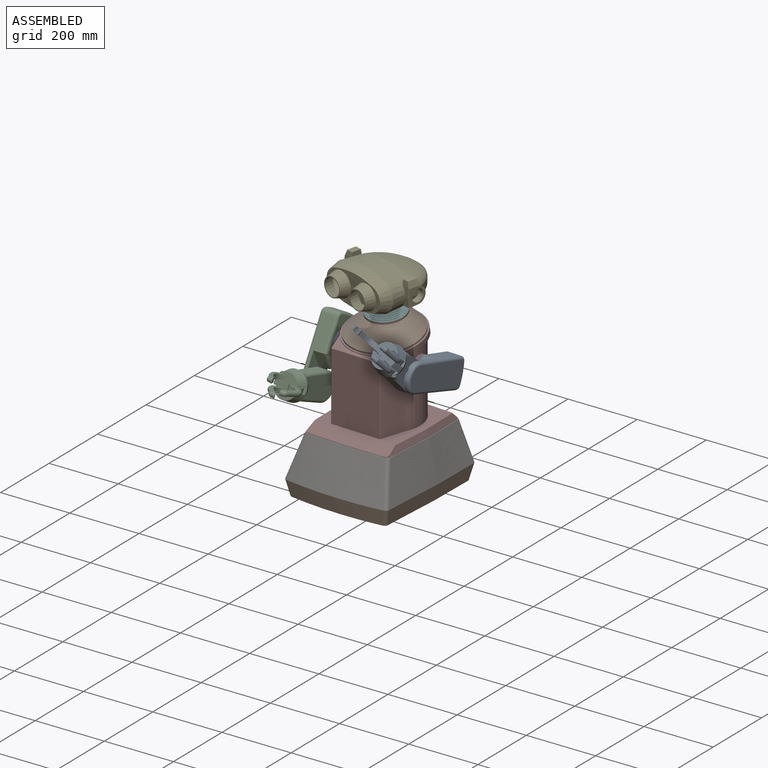
[diagram: assembled view]
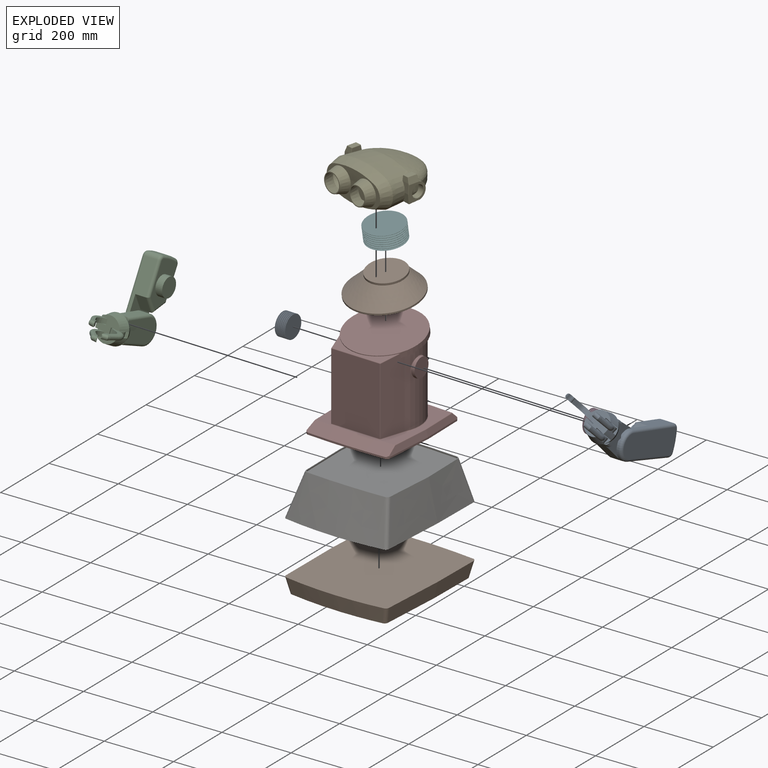
[diagram: exploded view]
GUIDED TOUR — MATED ASSEMBLY WITH SUBASSEMBLIES (Onshape document 58bd80dde055810fc68431c1, AutoMate assembly 58bd80dde055810fc68431c1_ead28b3b13cd48ad4f9b0c1c_d1398a42e05516c8f124f578_default)

This assembly has 21 component occurrences arranged in 10 top-level units: 7 individual components plus 3 subassemblies (S0, S1, S2). The tour has two levels: first the top level, where each subassembly is treated as one rigid unit; then each subassembly is toured internally in its own section (nesting deeper than one subassembly level is flattened into its subassembly's section).

Components are labeled P0..P20 across the whole record; subassembly units are labeled S0..S2. A mate is a constraint between two units; its type names the relative motion it leaves free:
  FASTENED — locks the two components together rigidly (no relative motion),
  REVOLUTE — leaves rotation about the listed axis free (a hinge).
Axis/direction vectors are unit vectors and 'through' points are millimeter coordinates, both in the assembly's world frame.

TOP-LEVEL MATES (between units; each subassembly's internal mates are listed in its own section)
  1. REVOLUTE "Revolute 1": S0 <-> P13, axis (-0.999, 0.032, 0.000) through (158.72, -116.70, 211.18) mm
  2. FASTENED "Fastened 4": P2 <-> P8, direction (-0.006, -0.174, 0.985) through (48.92, -105.88, 328.69) mm
  3. FASTENED "Fastened 5": P14 <-> S1, direction (-0.999, 0.032, 0.000) through (-81.15, -108.91, 211.18) mm
  4. FASTENED "Fastened 6": P4 <-> S0, direction (0.999, -0.032, 0.000) through (178.71, -117.35, 211.18) mm
  5. FASTENED "Fastened 2": P10 <-> P13, direction (0.000, 0.000, 1.000) through (48.46, -123.05, 29.18) mm
  6. FASTENED "Fastened 3": P13 <-> P2, direction (-0.006, -0.174, 0.985) through (48.73, -111.80, 275.86) mm
  7. REVOLUTE "Revolute 2": P13 <-> S1, axis (-0.999, 0.032, 0.000) through (-61.16, -109.56, 211.18) mm
  8. REVOLUTE "Revolute 3": P8 <-> S2, axis (-0.006, -0.174, 0.985) through (48.68, -113.17, 370.05) mm
  9. FASTENED "Fastened 1": P18 <-> P10, direction (0.000, 0.000, 1.000) through (48.12, -133.45, -80.82) mm

TOP-LEVEL ASSEMBLY ORDER
  1. P13 — the base component [order heuristic]
  2. S1 — core [order heuristic]
  3. S0 — core [order heuristic]
  4. P4 — core [order heuristic]
  5. P14 — core [order heuristic]
  6. P2 [order verified]
  7. P8 [order verified]
  8. S2 [order verified]
  9. P10 [order verified]
  10. P18 [order verified]
Order-tag legend:
  [order verified] — this step's position reverses a verified removal order: the component was checked to insert without passing through the ones already placed.
  [order heuristic] — the first 5 components form the assembly's core: parts whose collision-free extraction could not be verified, listed in mate-graph order.

Of the 21 component occurrences, 8 carry the full construction recipe — the FeatureScript program that regenerates the part's solid from scratch; the rest are supplied as boundary geometry only. Each toured unit is shown spotlighted twice — assembled, then exploded with a leader line back to its socket (green = recipe-attached component, orange = geometry-only, blue = subassembly unit; the rest desaturated gray).
NOTE — this tour is split across 3 documents so each fits a 32k-token context. This is document 1: the component sections continue in the remaining 2 documents, each repeating the header above.
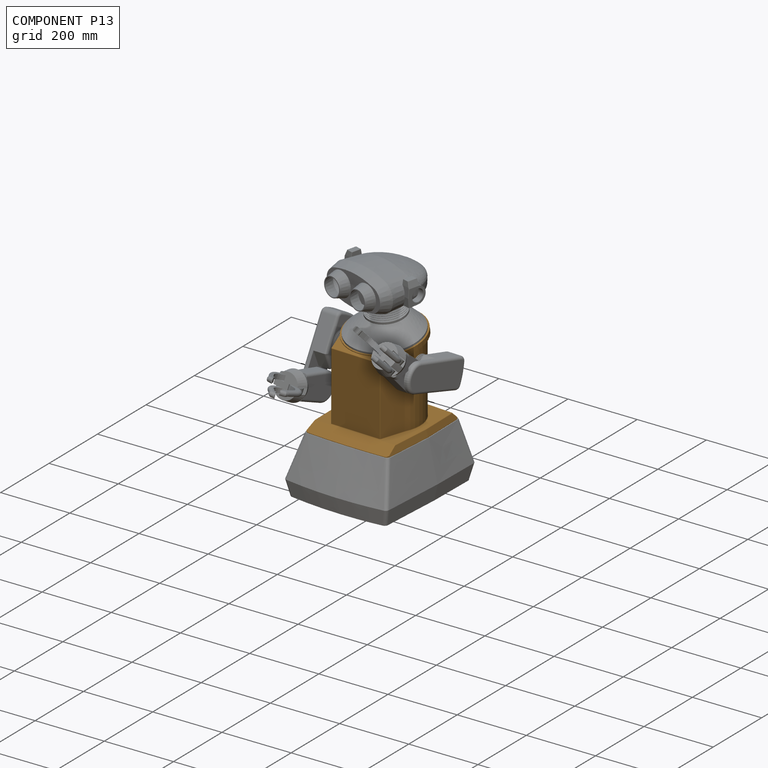
[diagram: component P13 — assembled]
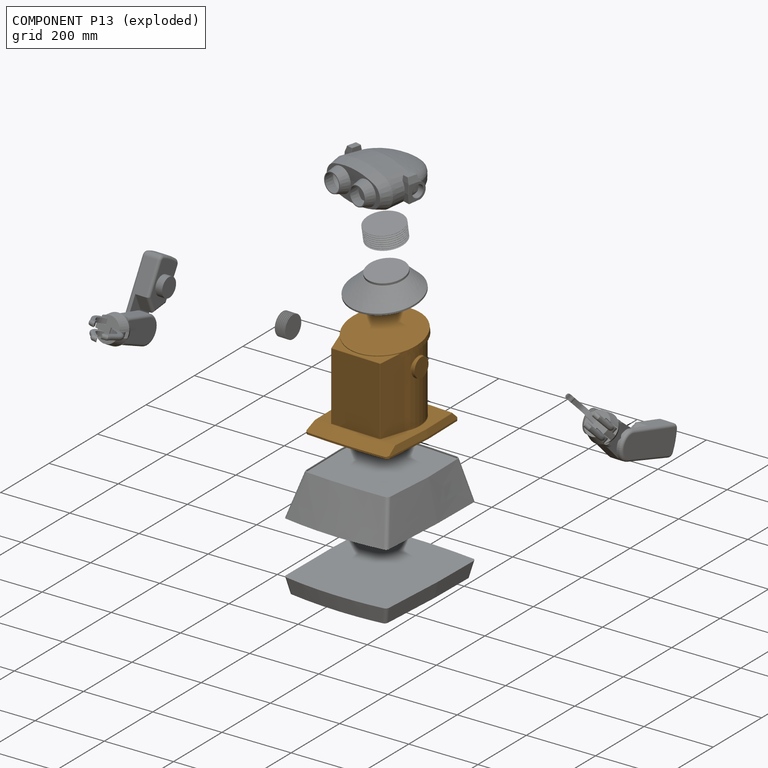
[diagram: component P13 — exploded]
COMPONENT P13 — geometry summary (no construction recipe available for this part):
  bounding box: 566.9 x 390.5 x 302.2 mm
  B-rep topology: 2 solids, 70 faces, 323 edges
  volume: 9771634 mm^3 (15% of its bounding box)
Held by: REVOLUTE mate "Revolute 1" to P0; FASTENED mate "Fastened 2" to P10; FASTENED mate "Fastened 3" to P2; REVOLUTE mate "Revolute 2" to P3.
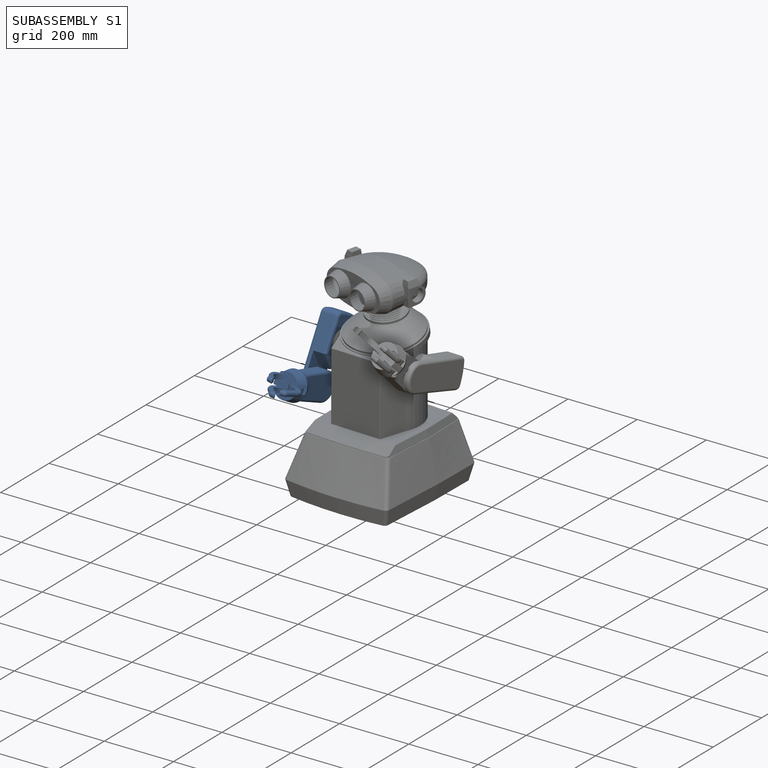
[diagram: subassembly S1 — assembled]
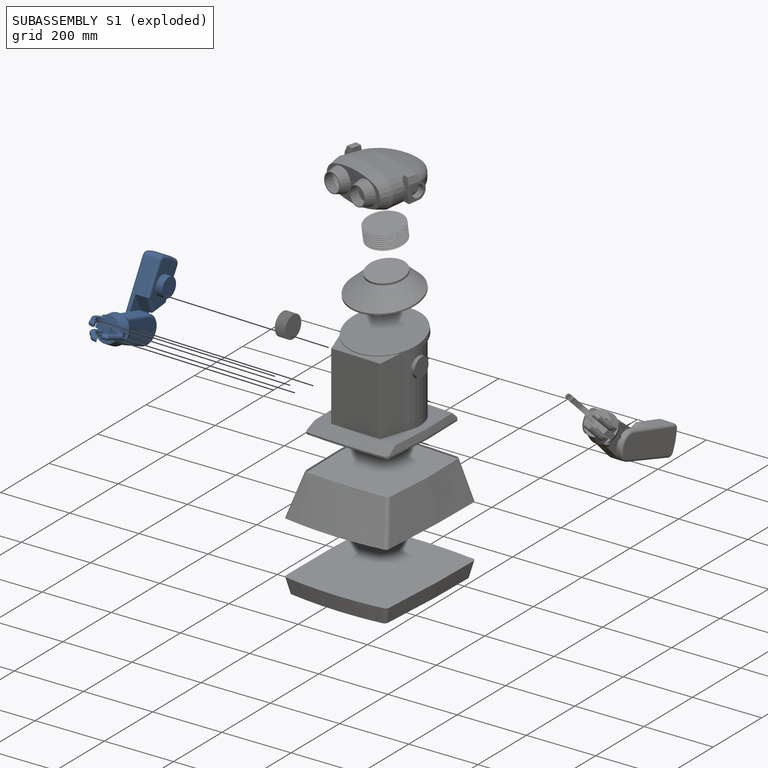
[diagram: subassembly S1 — exploded]
SUBASSEMBLY S1 — 6 components (P3, P5, P16, P17, P19, P20), of which 2 recipe-attached; toured below.
Held by: FASTENED mate "Fastened 5" to P14; REVOLUTE mate "Revolute 2" to P13.
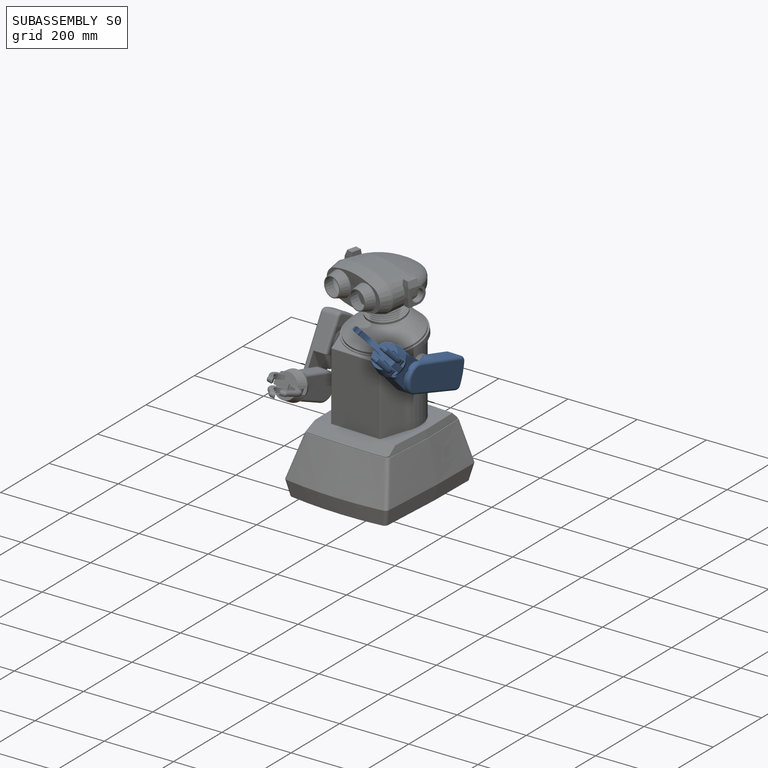
[diagram: subassembly S0 — assembled]
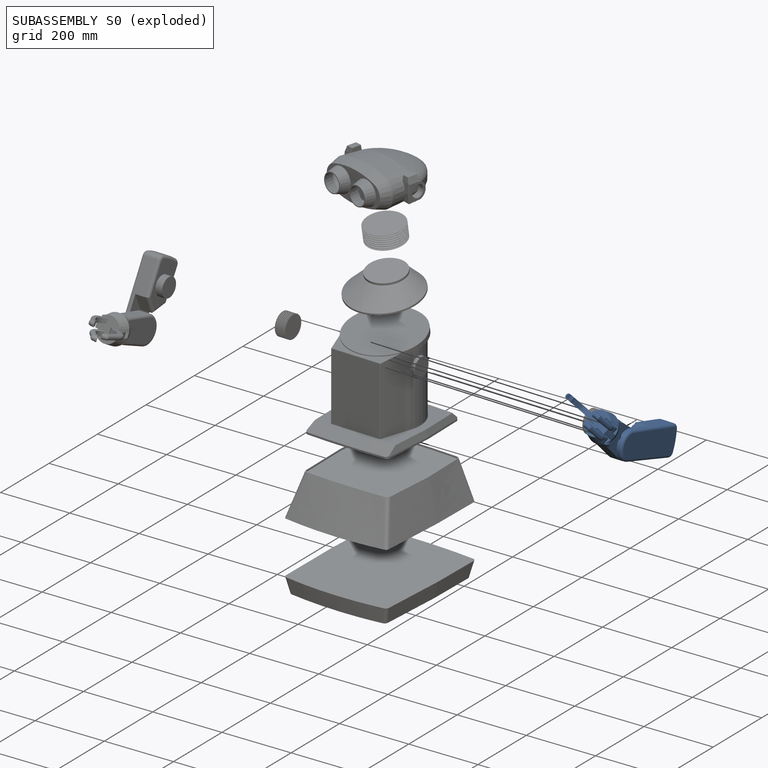
[diagram: subassembly S0 — exploded]
SUBASSEMBLY S0 — 6 components (P0, P1, P6, P9, P11, P12), of which 2 recipe-attached; toured below.
Held by: REVOLUTE mate "Revolute 1" to P13; FASTENED mate "Fastened 6" to P4.
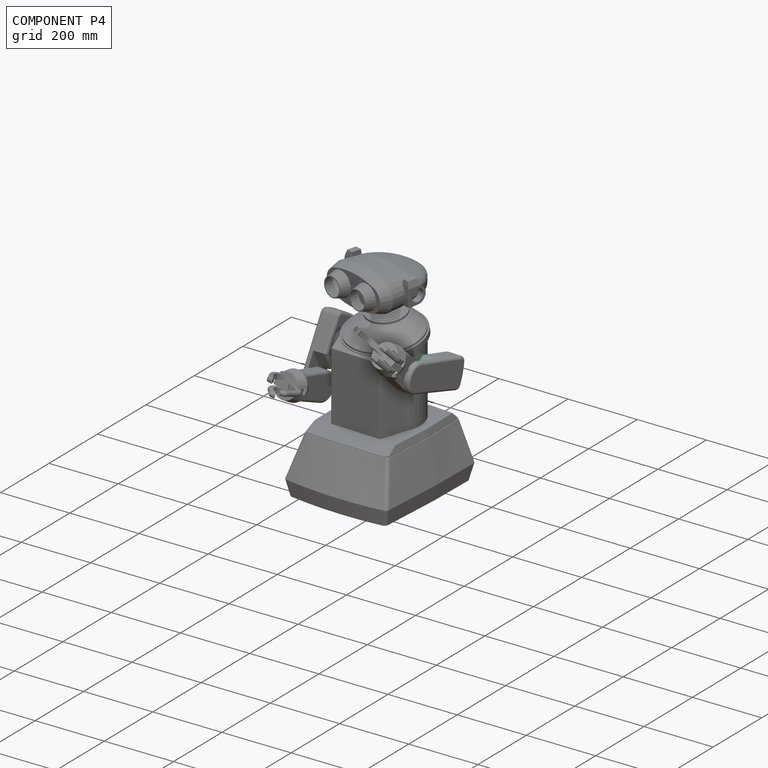
[diagram: component P4 — assembled]
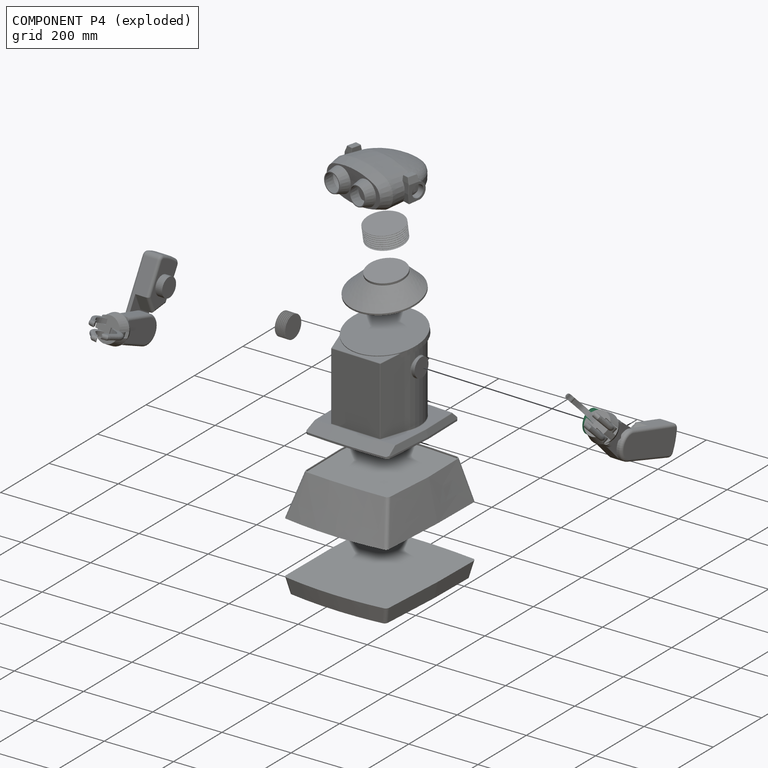
[diagram: component P4 — exploded]
COMPONENT P4 — recipe-attached (CADFS 00590277, mesh-verified: the recipe's output STEP matches this component's geometry to below the mesh-comparison resolution (tessellation chordal tolerance ~0.145 mm)).
Held by: FASTENED mate "Fastened 6" to P0.
Construction recipe (FeatureScript — the CAD program that rebuilds this solid; sketch coordinates are in the units given by the * unit suffixes, e.g. mm):

FeatureScript 1511;
import(path : "onshape/std/geometry.fs", version : "1511.0");
import(path : "onshape/std/common.fs", version : "1511.0");
const mm = millimeter;
const VERTEX = EntityType.VERTEX;
const EDGE = EntityType.EDGE;
const FACE = EntityType.FACE;
const BODY = EntityType.BODY;
function v(x, y){return vector(x, y);}
function OD(order){return orderDisambiguation(order);}
function OSD(set){return originalSetDisambiguation(set);}
function TD(topology){return topologyDisambiguation(topology);}
function TDD(query){return trueDependencyDisambiguation(query);}
function sQuery(a, b, c) {return sketchEntityQuery(a, b, c);}

annotation { "Feature Type Name" : "Feature", "Feature Type Description" : "" }
export const myFeature = defineFeature(function(context is Context, id is Id, definition is map)
    precondition{}
    {
        {
            var Q0;
            Q0=qCreatedBy(makeId("Front.planeOp"),FACE);
            var sketch = newSketch(context, id + "F0", { "sketchPlane" : qUnion([Q0])});
            skLineSegment(sketch, "E0", {"start": v(-32.5, 0) * mm, "end": v(-27.5, 1.5) * mm});
            skLineSegment(sketch, "E1", {"start": v(-27.5, 1.5) * mm, "end": v(-27.5, 2.5) * mm});
            skLineSegment(sketch, "E2", {"start": v(-27.5, 2.5) * mm, "end": v(-32.5, 4) * mm});
            skLineSegment(sketch, "E3", {"start": v(-32.5, 4) * mm, "end": v(-32.5, 5) * mm});
            skLineSegment(sketch, "E4", {"start": v(-32.5, 0) * mm, "end": v(0, 0) * mm});
            skLineSegment(sketch, "E5", {"start": v(0, 0) * mm, "end": v(0, 30) * mm});
            skLineSegment(sketch, "E6", {"start": v(-32.5, 4) * mm, "end": v(-32.5, 0) * mm, "construction": true});
            skPoint(sketch, "E7", {"position": v(-32.5, 2) * mm});
            skPoint(sketch, "E8", {"position": v(-27.5, 2) * mm});
            skLineSegment(sketch, "E9.0.1.0", {"start": v(-32.5, 9) * mm, "end": v(-32.5, 5) * mm, "construction": true});
            skLineSegment(sketch, "E9.0.1.1", {"start": v(-27.5, 7.5) * mm, "end": v(-32.5, 9) * mm});
            skLineSegment(sketch, "E9.0.1.2", {"start": v(-32.5, 5) * mm, "end": v(-27.5, 6.5) * mm});
            skPoint(sketch, "E9.0.1.3", {"position": v(-27.5, 7) * mm});
            skPoint(sketch, "E9.0.1.4", {"position": v(-32.5, 7) * mm});
            skLineSegment(sketch, "E9.0.1.5", {"start": v(-32.5, 9) * mm, "end": v(-32.5, 10) * mm});
            skLineSegment(sketch, "E9.0.1.6", {"start": v(-27.5, 6.5) * mm, "end": v(-27.5, 7.5) * mm});
            skLineSegment(sketch, "E9.0.2.0", {"start": v(-32.5, 14) * mm, "end": v(-32.5, 10) * mm, "construction": true});
            skLineSegment(sketch, "E9.0.2.1", {"start": v(-27.5, 12.5) * mm, "end": v(-32.5, 14) * mm});
            skLineSegment(sketch, "E9.0.2.2", {"start": v(-32.5, 10) * mm, "end": v(-27.5, 11.5) * mm});
            skPoint(sketch, "E9.0.2.3", {"position": v(-27.5, 12) * mm});
            skPoint(sketch, "E9.0.2.4", {"position": v(-32.5, 12) * mm});
            skLineSegment(sketch, "E9.0.2.5", {"start": v(-32.5, 14) * mm, "end": v(-32.5, 15) * mm});
            skLineSegment(sketch, "E9.0.2.6", {"start": v(-27.5, 11.5) * mm, "end": v(-27.5, 12.5) * mm});
            skLineSegment(sketch, "E9.0.3.0", {"start": v(-32.5, 19) * mm, "end": v(-32.5, 15) * mm, "construction": true});
            skLineSegment(sketch, "E9.0.3.1", {"start": v(-27.5, 17.5) * mm, "end": v(-32.5, 19) * mm});
            skLineSegment(sketch, "E9.0.3.2", {"start": v(-32.5, 15) * mm, "end": v(-27.5, 16.5) * mm});
            skPoint(sketch, "E9.0.3.3", {"position": v(-27.5, 17) * mm});
            skPoint(sketch, "E9.0.3.4", {"position": v(-32.5, 17) * mm});
            skLineSegment(sketch, "E9.0.3.5", {"start": v(-32.5, 19) * mm, "end": v(-32.5, 20) * mm});
            skLineSegment(sketch, "E9.0.3.6", {"start": v(-27.5, 16.5) * mm, "end": v(-27.5, 17.5) * mm});
            skLineSegment(sketch, "E9.0.4.0", {"start": v(-32.5, 24) * mm, "end": v(-32.5, 20) * mm, "construction": true});
            skLineSegment(sketch, "E9.0.4.1", {"start": v(-27.5, 22.5) * mm, "end": v(-32.5, 24) * mm});
            skLineSegment(sketch, "E9.0.4.2", {"start": v(-32.5, 20) * mm, "end": v(-27.5, 21.5) * mm});
            skPoint(sketch, "E9.0.4.3", {"position": v(-27.5, 22) * mm});
            skPoint(sketch, "E9.0.4.4", {"position": v(-32.5, 22) * mm});
            skLineSegment(sketch, "E9.0.4.5", {"start": v(-32.5, 24) * mm, "end": v(-32.5, 25) * mm});
            skLineSegment(sketch, "E9.0.4.6", {"start": v(-27.5, 21.5) * mm, "end": v(-27.5, 22.5) * mm});
            skLineSegment(sketch, "E9.0.5.0", {"start": v(-32.5, 29) * mm, "end": v(-32.5, 25) * mm, "construction": true});
            skLineSegment(sketch, "E9.0.5.1", {"start": v(-27.5, 27.5) * mm, "end": v(-32.5, 29) * mm});
            skLineSegment(sketch, "E9.0.5.2", {"start": v(-32.5, 25) * mm, "end": v(-27.5, 26.5) * mm});
            skPoint(sketch, "E9.0.5.3", {"position": v(-27.5, 27) * mm});
            skPoint(sketch, "E9.0.5.4", {"position": v(-32.5, 27) * mm});
            skLineSegment(sketch, "E9.0.5.5", {"start": v(-32.5, 29) * mm, "end": v(-32.5, 30) * mm});
            skLineSegment(sketch, "E9.0.5.6", {"start": v(-27.5, 26.5) * mm, "end": v(-27.5, 27.5) * mm});
            skLineSegment(sketch, "E9.direction1", {"start": v(-37, 0) * mm, "end": v(-32.5, 0) * mm, "construction": true});
            skLineSegment(sketch, "E9.direction2", {"start": v(-32.5, 0) * mm, "end": v(-32.5, 5) * mm, "construction": true});
            skLineSegment(sketch, "E10", {"start": v(-32.5, 30) * mm, "end": v(0, 30) * mm});
            skSolve(sketch);
        }
        {
            var Q0;
            Q0=makeQuery(id+"F0.imprint","IMPRINT",FACE,{"disambiguationData":[TD([[makeQuery(id+"F0.imprint","IMPRINT",EDGE,{"derivedFrom":sQuery(id+"F0.wireOp",EDGE,"E0")}),-1.0]])]});
            var Q1;
            Q1=sQuery(id+"F0.wireOp",EDGE,"E5");
            revolve(context, id + "F1", {"entities" : qUnion([Q0]), "axis" : qUnion([Q1]), "revolveType" : RevolveType.FULL});
        }
        {
            var Q0;
            Q0=makeQuery(id+"F1.opRevolve","SWEPT_EDGE",EDGE,{"disambiguationData":[OSD([sQuery(id+"F0.wireOp",EDGE,"E9.0.5.5"),sQuery(id+"F0.wireOp",EDGE,"E10")])]});
            var Q1;
            Q1=makeQuery(id+"F1.opRevolve","SWEPT_EDGE",EDGE,{"disambiguationData":[OSD([sQuery(id+"F0.wireOp",EDGE,"E9.0.5.1"),sQuery(id+"F0.wireOp",EDGE,"E9.0.5.5")])]});
            var Q2;
            Q2=makeQuery(id+"F1.opRevolve","SWEPT_EDGE",EDGE,{"disambiguationData":[OSD([sQuery(id+"F0.wireOp",EDGE,"E9.0.5.1"),sQuery(id+"F0.wireOp",EDGE,"E9.0.5.6")])]});
            var Q3;
            Q3=makeQuery(id+"F1.opRevolve","SWEPT_EDGE",EDGE,{"disambiguationData":[OSD([sQuery(id+"F0.wireOp",EDGE,"E9.0.5.2"),sQuery(id+"F0.wireOp",EDGE,"E9.0.5.6")])]});
            var Q4;
            Q4=makeQuery(id+"F1.opRevolve","SWEPT_EDGE",EDGE,{"disambiguationData":[OSD([sQuery(id+"F0.wireOp",EDGE,"E9.0.4.5"),sQuery(id+"F0.wireOp",EDGE,"E9.0.5.2")])]});
            var Q5;
            Q5=makeQuery(id+"F1.opRevolve","SWEPT_EDGE",EDGE,{"disambiguationData":[OSD([sQuery(id+"F0.wireOp",EDGE,"E9.0.4.1"),sQuery(id+"F0.wireOp",EDGE,"E9.0.4.5")])]});
            var Q6;
            Q6=makeQuery(id+"F1.opRevolve","SWEPT_EDGE",EDGE,{"disambiguationData":[OSD([sQuery(id+"F0.wireOp",EDGE,"E9.0.4.1"),sQuery(id+"F0.wireOp",EDGE,"E9.0.4.6")])]});
            var Q7;
            Q7=makeQuery(id+"F1.opRevolve","SWEPT_EDGE",EDGE,{"disambiguationData":[OSD([sQuery(id+"F0.wireOp",EDGE,"E9.0.4.2"),sQuery(id+"F0.wireOp",EDGE,"E9.0.4.6")])]});
            var Q8;
            Q8=makeQuery(id+"F1.opRevolve","SWEPT_EDGE",EDGE,{"disambiguationData":[OSD([sQuery(id+"F0.wireOp",EDGE,"E9.0.3.5"),sQuery(id+"F0.wireOp",EDGE,"E9.0.4.2")])]});
            var Q9;
            Q9=makeQuery(id+"F1.opRevolve","SWEPT_EDGE",EDGE,{"disambiguationData":[OSD([sQuery(id+"F0.wireOp",EDGE,"E9.0.3.1"),sQuery(id+"F0.wireOp",EDGE,"E9.0.3.5")])]});
            var Q10;
            Q10=makeQuery(id+"F1.opRevolve","SWEPT_EDGE",EDGE,{"disambiguationData":[OSD([sQuery(id+"F0.wireOp",EDGE,"E9.0.3.1"),sQuery(id+"F0.wireOp",EDGE,"E9.0.3.6")])]});
            var Q11;
            Q11=makeQuery(id+"F1.opRevolve","SWEPT_EDGE",EDGE,{"disambiguationData":[OSD([sQuery(id+"F0.wireOp",EDGE,"E9.0.3.2"),sQuery(id+"F0.wireOp",EDGE,"E9.0.3.6")])]});
            var Q12;
            Q12=makeQuery(id+"F1.opRevolve","SWEPT_EDGE",EDGE,{"disambiguationData":[OSD([sQuery(id+"F0.wireOp",EDGE,"E9.0.2.5"),sQuery(id+"F0.wireOp",EDGE,"E9.0.3.2")])]});
            var Q13;
            Q13=makeQuery(id+"F1.opRevolve","SWEPT_EDGE",EDGE,{"disambiguationData":[OSD([sQuery(id+"F0.wireOp",EDGE,"E9.0.2.1"),sQuery(id+"F0.wireOp",EDGE,"E9.0.2.5")])]});
            var Q14;
            Q14=makeQuery(id+"F1.opRevolve","SWEPT_FACE",FACE,{"disambiguationData":[OSD([sQuery(id+"F0.wireOp",EDGE,"E9.0.2.1")])]});
            var Q15;
            Q15=makeQuery(id+"F1.opRevolve","SWEPT_EDGE",EDGE,{"disambiguationData":[OSD([sQuery(id+"F0.wireOp",EDGE,"E9.0.2.1"),sQuery(id+"F0.wireOp",EDGE,"E9.0.2.6")])]});
            var Q16;
            Q16=makeQuery(id+"F1.opRevolve","SWEPT_EDGE",EDGE,{"disambiguationData":[OSD([sQuery(id+"F0.wireOp",EDGE,"E9.0.2.2"),sQuery(id+"F0.wireOp",EDGE,"E9.0.2.6")])]});
            var Q17;
            Q17=makeQuery(id+"F1.opRevolve","SWEPT_FACE",FACE,{"disambiguationData":[OSD([sQuery(id+"F0.wireOp",EDGE,"E9.0.2.2")])]});
            var Q18;
            Q18=makeQuery(id+"F1.opRevolve","SWEPT_EDGE",EDGE,{"disambiguationData":[OSD([sQuery(id+"F0.wireOp",EDGE,"E9.0.1.1"),sQuery(id+"F0.wireOp",EDGE,"E9.0.1.5")])]});
            var Q19;
            Q19=makeQuery(id+"F1.opRevolve","SWEPT_EDGE",EDGE,{"disambiguationData":[OSD([sQuery(id+"F0.wireOp",EDGE,"E9.0.1.5"),sQuery(id+"F0.wireOp",EDGE,"E9.0.2.2")])]});
            var Q20;
            Q20=makeQuery(id+"F1.opRevolve","SWEPT_EDGE",EDGE,{"disambiguationData":[OSD([sQuery(id+"F0.wireOp",EDGE,"E9.0.1.1"),sQuery(id+"F0.wireOp",EDGE,"E9.0.1.6")])]});
            var Q21;
            Q21=makeQuery(id+"F1.opRevolve","SWEPT_EDGE",EDGE,{"disambiguationData":[OSD([sQuery(id+"F0.wireOp",EDGE,"E9.0.1.2"),sQuery(id+"F0.wireOp",EDGE,"E9.0.1.6")])]});
            var Q22;
            Q22=makeQuery(id+"F1.opRevolve","SWEPT_EDGE",EDGE,{"disambiguationData":[OSD([sQuery(id+"F0.wireOp",EDGE,"E3"),sQuery(id+"F0.wireOp",EDGE,"E9.0.1.2")])]});
            var Q23;
            Q23=makeQuery(id+"F1.opRevolve","SWEPT_EDGE",EDGE,{"disambiguationData":[OSD([sQuery(id+"F0.wireOp",EDGE,"E2"),sQuery(id+"F0.wireOp",EDGE,"E3")])]});
            var Q24;
            Q24=makeQuery(id+"F1.opRevolve","SWEPT_EDGE",EDGE,{"disambiguationData":[OSD([sQuery(id+"F0.wireOp",EDGE,"E1"),sQuery(id+"F0.wireOp",EDGE,"E2")])]});
            var Q25;
            Q25=makeQuery(id+"F1.opRevolve","SWEPT_EDGE",EDGE,{"disambiguationData":[OSD([sQuery(id+"F0.wireOp",EDGE,"E0"),sQuery(id+"F0.wireOp",EDGE,"E1")])]});
            fillet(context, id + "F2", {"entities" : qUnion([Q0, Q1, Q2, Q3, Q4, Q5, Q6, Q7, Q8, Q9, Q10, Q11, Q12, Q13, Q14, Q15, Q16, Q17, Q18, Q19, Q20, Q21, Q22, Q23, Q24, Q25]), "radius" : 0.55 * mm, "tangentPropagation" : true, "allowEdgeOverflow" : false});
        }
    });
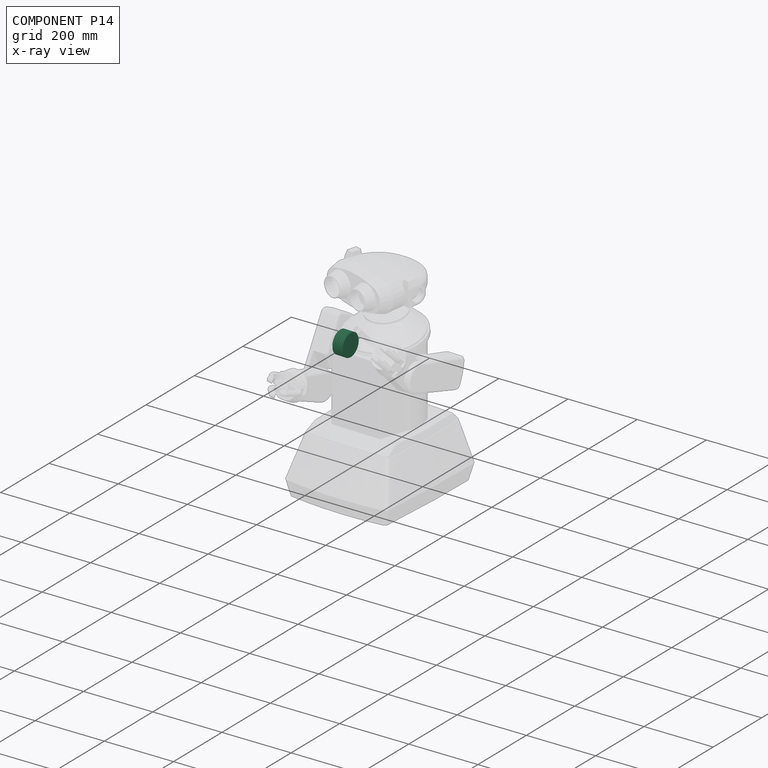
[diagram: component P14 — x-ray view]
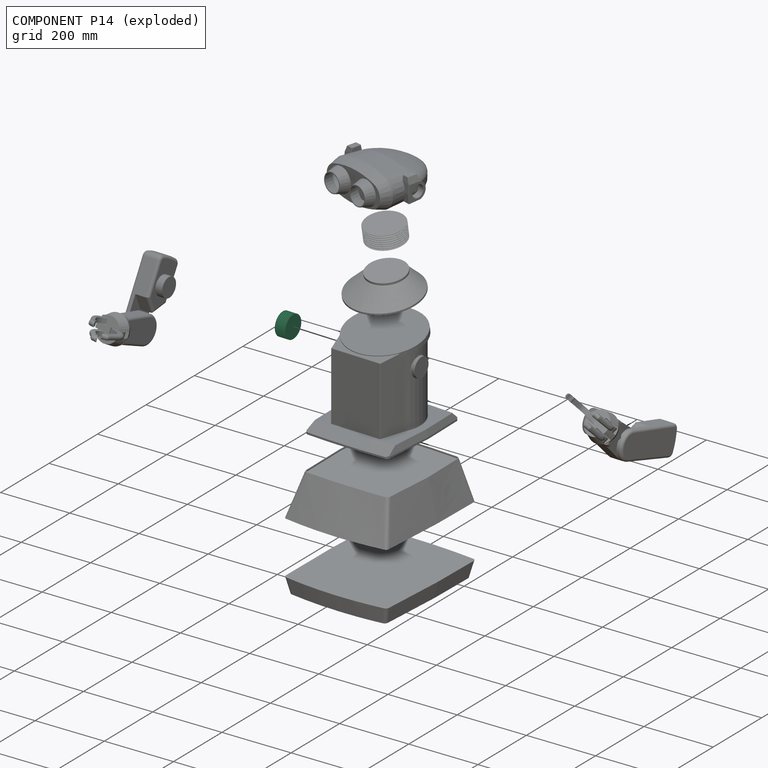
[diagram: component P14 — exploded]
COMPONENT P14 — same part as P4 (CADFS 00590277); its construction recipe is shown at P4.
Held by: FASTENED mate "Fastened 5" to P3.
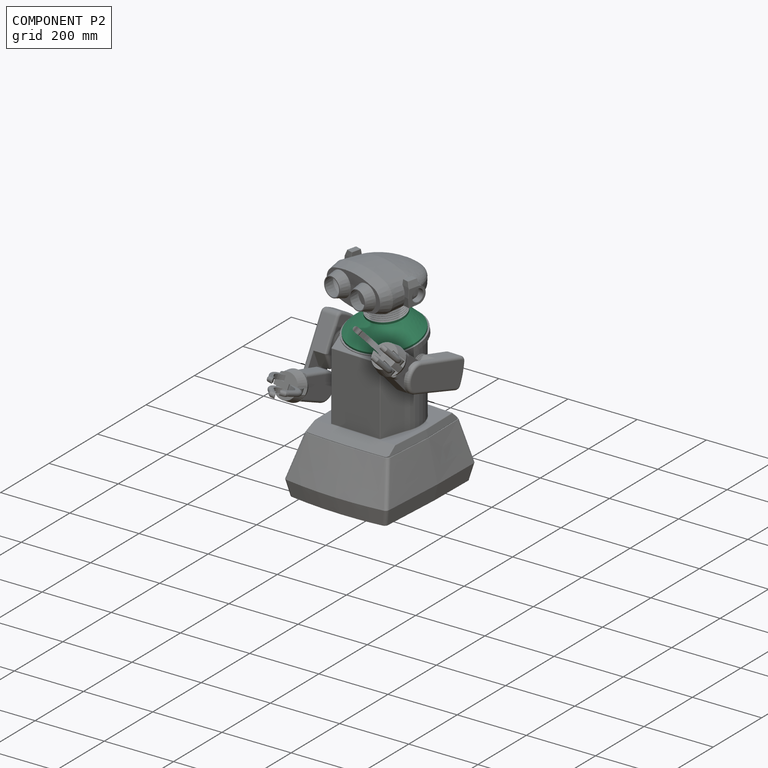
[diagram: component P2 — assembled]
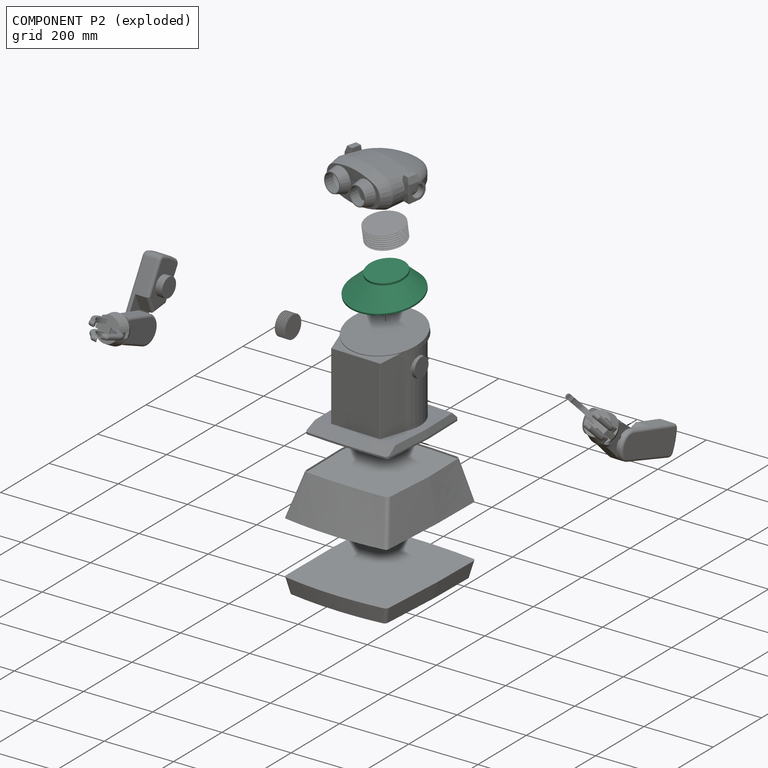
[diagram: component P2 — exploded]
COMPONENT P2 — recipe-attached (CADFS 00932343, mesh-verified: the recipe's output STEP matches this component's geometry to below the mesh-comparison resolution (tessellation chordal tolerance ~0.442 mm)).
Held by: FASTENED mate "Fastened 4" to P8; FASTENED mate "Fastened 3" to P13.
Construction recipe (FeatureScript — the CAD program that rebuilds this solid; sketch coordinates are in the units given by the * unit suffixes, e.g. mm):

FeatureScript 1511;
import(path : "onshape/std/geometry.fs", version : "1511.0");
import(path : "onshape/std/common.fs", version : "1511.0");
const mm = millimeter;
const VERTEX = EntityType.VERTEX;
const EDGE = EntityType.EDGE;
const FACE = EntityType.FACE;
const BODY = EntityType.BODY;
function v(x, y){return vector(x, y);}
function OD(order){return orderDisambiguation(order);}
function OSD(set){return originalSetDisambiguation(set);}
function TD(topology){return topologyDisambiguation(topology);}
function TDD(query){return trueDependencyDisambiguation(query);}
function sQuery(a, b, c) {return sketchEntityQuery(a, b, c);}

annotation { "Feature Type Name" : "Feature", "Feature Type Description" : "" }
export const myFeature = defineFeature(function(context is Context, id is Id, definition is map)
    precondition{}
    {
        {
            var Q0;
            Q0=qCreatedBy(makeId("Top.planeOp"),FACE);
            var sketch = newSketch(context, id + "F0", { "sketchPlane" : qUnion([Q0])});
            skCircle(sketch, "E0", {"center": v(0, 0) * mm, "radius": 107.5 * mm, "construction": true});
            skLineSegment(sketch, "E1", {"start": v(-114.47, -128.45) * mm, "end": v(133.77, -128.45) * mm, "construction": true});
            skCircle(sketch, "E2.0", {"center": v(0, 0) * mm, "radius": 102.5 * mm});
            skSolve(sketch);
        }
        {
            var Q0;
            Q0=sQuery(id+"F0.wireOp",EDGE,"E1");
            cPlane(context, id + "F1", {"entities" : qUnion([Q0]), "cplaneType" : CPlaneType.LINE_ANGLE, "offset" : 50 * mm, "angle" : 90 * degree, "width" : 150 * mm, "height" : 150 * mm});
        }
        {
            var Q0;
            Q0=qCreatedBy(id+"F1.planeOp",FACE);
            cPlane(context, id + "F2", {"entities" : qUnion([Q0]), "cplaneType" : CPlaneType.OFFSET, "offset" : 40 * mm, "width" : 150 * mm, "height" : 150 * mm});
        }
        {
            var Q0;
            Q0=qCreatedBy(id+"F2.planeOp",FACE);
            var sketch = newSketch(context, id + "F3", { "sketchPlane" : qUnion([Q0])});
            skCircle(sketch, "E3", {"center": v(0, 15) * mm, "radius": 55 * mm});
            skSolve(sketch);
        }
        {
            var Q0;
            Q0=makeQuery(id+"F0.imprint","IMPRINT",FACE,{"disambiguationData":[TD([[makeQuery(id+"F0.imprint","IMPRINT",EDGE,{"derivedFrom":sQuery(id+"F0.wireOp",EDGE,"E2.0")}),1.0]])]});
            var Q1;
            Q1=makeQuery(id+"F3.imprint","IMPRINT",FACE,{"disambiguationData":[TD([[makeQuery(id+"F3.imprint","IMPRINT",EDGE,{"derivedFrom":sQuery(id+"F3.wireOp",EDGE,"E3")}),1.0]])]});
            loft(context, id + "F4", {"sheetProfilesArray" : [{ "sheetProfileEntities" : qUnion([Q0]) }, { "sheetProfileEntities" : qUnion([Q1]) }]});
        }
        {
            var Q0;
            Q0=makeQuery(id+"F4.opLoft","CAP_FACE",FACE,{"disambiguationData":[OSD([makeQuery(id+"F3.imprint","IMPRINT",FACE,{"disambiguationData":[TD([[makeQuery(id+"F3.imprint","IMPRINT",EDGE,{"derivedFrom":sQuery(id+"F3.wireOp",EDGE,"E3")}),1.0]])]})])],"isStart":true});
            extrude(context, id + "F5", {"entities" : qUnion([Q0]), "operationType" : NewBodyOperationType.ADD, "depth" : 6 * mm});
        }
        {
            var Q0;
            Q0=makeQuery(id+"F4.opLoft","CAP_FACE",FACE,{"disambiguationData":[OSD([makeQuery(id+"F0.imprint","IMPRINT",FACE,{"disambiguationData":[TD([[makeQuery(id+"F0.imprint","IMPRINT",EDGE,{"derivedFrom":sQuery(id+"F0.wireOp",EDGE,"E2.0")}),1.0]])]})])],"isStart":true});
            extrude(context, id + "F6", {"entities" : qUnion([Q0]), "operationType" : NewBodyOperationType.ADD, "depth" : 5 * mm});
        }
    });
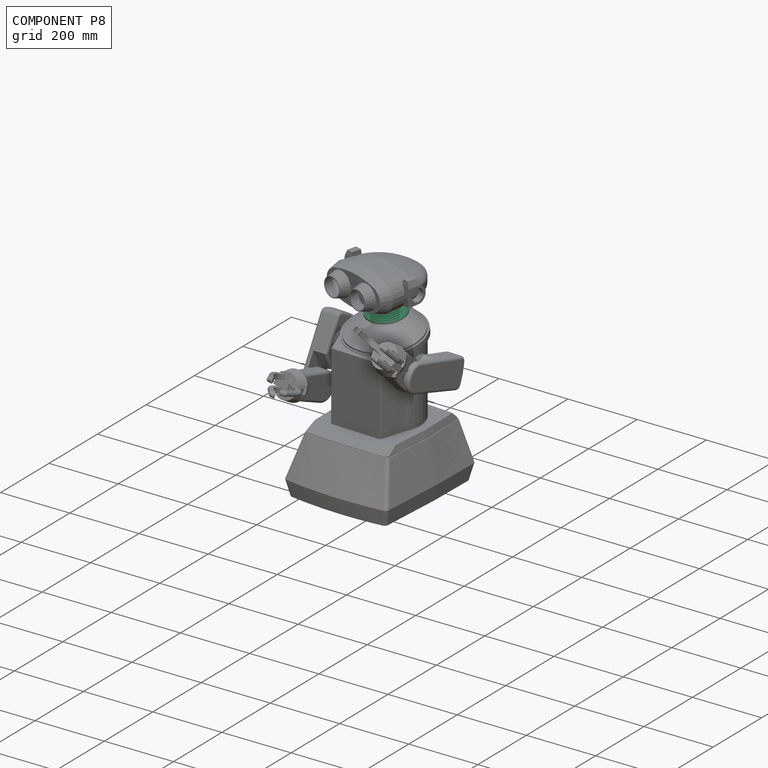
[diagram: component P8 — assembled]
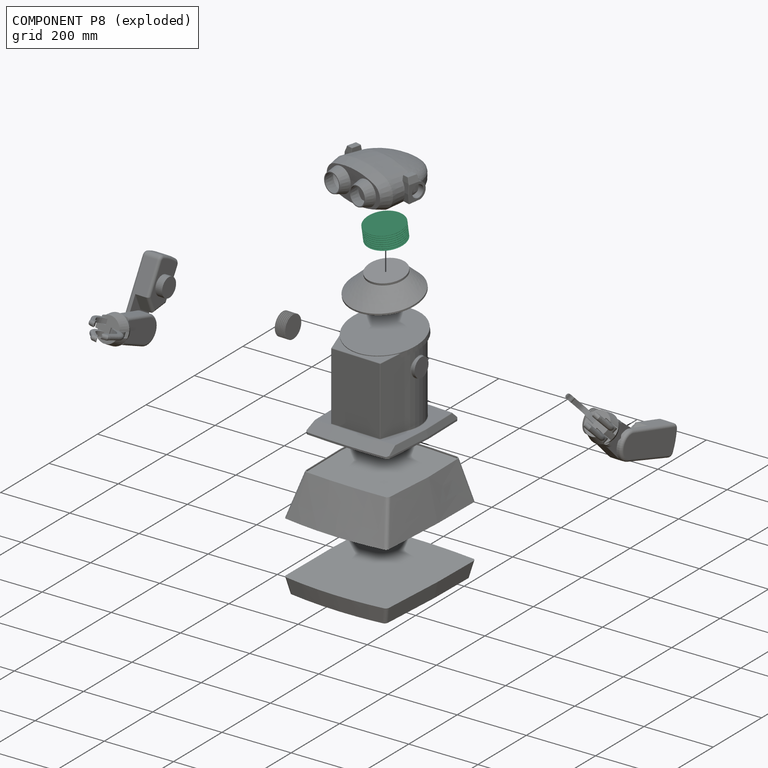
[diagram: component P8 — exploded]
COMPONENT P8 — recipe-attached (CADFS 00590278, mesh-verified: the recipe's output STEP matches this component's geometry to below the mesh-comparison resolution (tessellation chordal tolerance ~0.242 mm)).
Held by: FASTENED mate "Fastened 4" to P2; REVOLUTE mate "Revolute 3" to P7.
Construction recipe (FeatureScript — the CAD program that rebuilds this solid; sketch coordinates are in the units given by the * unit suffixes, e.g. mm):

FeatureScript 1511;
import(path : "onshape/std/geometry.fs", version : "1511.0");
import(path : "onshape/std/common.fs", version : "1511.0");
const mm = millimeter;
const VERTEX = EntityType.VERTEX;
const EDGE = EntityType.EDGE;
const FACE = EntityType.FACE;
const BODY = EntityType.BODY;
function v(x, y){return vector(x, y);}
function OD(order){return orderDisambiguation(order);}
function OSD(set){return originalSetDisambiguation(set);}
function TD(topology){return topologyDisambiguation(topology);}
function TDD(query){return trueDependencyDisambiguation(query);}
function sQuery(a, b, c) {return sketchEntityQuery(a, b, c);}

annotation { "Feature Type Name" : "Feature", "Feature Type Description" : "" }
export const myFeature = defineFeature(function(context is Context, id is Id, definition is map)
    precondition{}
    {
        {
            var Q0;
            Q0=qCreatedBy(makeId("Front.planeOp"),FACE);
            var sketch = newSketch(context, id + "F0", { "sketchPlane" : qUnion([Q0])});
            skLineSegment(sketch, "E0", {"start": v(0, 0) * mm, "end": v(0, 42) * mm});
            skLineSegment(sketch, "E1", {"start": v(-55, 0) * mm, "end": v(-48.46, 1.8) * mm});
            skLineSegment(sketch, "E2", {"start": v(-48.46, 1.8) * mm, "end": v(-48.46, 2.8) * mm});
            skLineSegment(sketch, "E3", {"start": v(-48.46, 2.8) * mm, "end": v(-55, 5) * mm});
            skLineSegment(sketch, "E4", {"start": v(-55, 5) * mm, "end": v(-55, 6) * mm});
            skLineSegment(sketch, "E5.0.1.0", {"start": v(-55, 6) * mm, "end": v(-48.46, 7.8) * mm});
            skLineSegment(sketch, "E5.0.1.1", {"start": v(-48.46, 8.8) * mm, "end": v(-55, 11) * mm});
            skLineSegment(sketch, "E5.0.1.2", {"start": v(-55, 11) * mm, "end": v(-55, 12) * mm});
            skLineSegment(sketch, "E5.0.1.3", {"start": v(-48.46, 7.8) * mm, "end": v(-48.46, 8.8) * mm});
            skLineSegment(sketch, "E5.0.2.0", {"start": v(-55, 12) * mm, "end": v(-48.46, 13.8) * mm});
            skLineSegment(sketch, "E5.0.2.1", {"start": v(-48.46, 14.8) * mm, "end": v(-55, 17) * mm});
            skLineSegment(sketch, "E5.0.2.2", {"start": v(-55, 17) * mm, "end": v(-55, 18) * mm});
            skLineSegment(sketch, "E5.0.2.3", {"start": v(-48.46, 13.8) * mm, "end": v(-48.46, 14.8) * mm});
            skLineSegment(sketch, "E5.0.3.0", {"start": v(-55, 18) * mm, "end": v(-48.46, 19.8) * mm});
            skLineSegment(sketch, "E5.0.3.1", {"start": v(-48.46, 20.8) * mm, "end": v(-55, 23) * mm});
            skLineSegment(sketch, "E5.0.3.2", {"start": v(-55, 23) * mm, "end": v(-55, 24) * mm});
            skLineSegment(sketch, "E5.0.3.3", {"start": v(-48.46, 19.8) * mm, "end": v(-48.46, 20.8) * mm});
            skLineSegment(sketch, "E5.0.4.0", {"start": v(-55, 24) * mm, "end": v(-48.46, 25.8) * mm});
            skLineSegment(sketch, "E5.0.4.1", {"start": v(-48.46, 26.8) * mm, "end": v(-55, 29) * mm});
            skLineSegment(sketch, "E5.0.4.2", {"start": v(-55, 29) * mm, "end": v(-55, 30) * mm});
            skLineSegment(sketch, "E5.0.4.3", {"start": v(-48.46, 25.8) * mm, "end": v(-48.46, 26.8) * mm});
            skLineSegment(sketch, "E5.0.5.0", {"start": v(-55, 30) * mm, "end": v(-48.46, 31.8) * mm});
            skLineSegment(sketch, "E5.0.5.1", {"start": v(-48.46, 32.8) * mm, "end": v(-55, 35) * mm});
            skLineSegment(sketch, "E5.0.5.2", {"start": v(-55, 35) * mm, "end": v(-55, 36) * mm});
            skLineSegment(sketch, "E5.0.5.3", {"start": v(-48.46, 31.8) * mm, "end": v(-48.46, 32.8) * mm});
            skLineSegment(sketch, "E5.0.6.0", {"start": v(-55, 36) * mm, "end": v(-48.46, 37.8) * mm});
            skLineSegment(sketch, "E5.0.6.1", {"start": v(-48.46, 38.8) * mm, "end": v(-55, 41) * mm});
            skLineSegment(sketch, "E5.0.6.2", {"start": v(-55, 41) * mm, "end": v(-55, 42) * mm});
            skLineSegment(sketch, "E5.0.6.3", {"start": v(-48.46, 37.8) * mm, "end": v(-48.46, 38.8) * mm});
            skLineSegment(sketch, "E5.direction1", {"start": v(-55, 0) * mm, "end": v(-14, 0) * mm, "construction": true});
            skLineSegment(sketch, "E5.direction2", {"start": v(-55, 0) * mm, "end": v(-55, 6) * mm, "construction": true});
            skLineSegment(sketch, "E6", {"start": v(-55, 0) * mm, "end": v(0, 0) * mm});
            skLineSegment(sketch, "E7", {"start": v(-55, 42) * mm, "end": v(0, 42) * mm});
            skSolve(sketch);
        }
        {
            var Q0;
            Q0=makeQuery(id+"F0.imprint","IMPRINT",FACE,{"disambiguationData":[TD([[makeQuery(id+"F0.imprint","IMPRINT",EDGE,{"derivedFrom":sQuery(id+"F0.wireOp",EDGE,"E0")}),1.0]])]});
            var Q1;
            Q1=sQuery(id+"F0.wireOp",EDGE,"E0");
            revolve(context, id + "F1", {"entities" : qUnion([Q0]), "axis" : qUnion([Q1]), "revolveType" : RevolveType.FULL});
        }
        {
            var Q0;
            Q0=makeQuery(id+"F1.opRevolve","SWEPT_EDGE",EDGE,{"disambiguationData":[OSD([sQuery(id+"F0.wireOp",EDGE,"E5.0.6.1"),sQuery(id+"F0.wireOp",EDGE,"E5.0.6.2")])]});
            var Q1;
            Q1=makeQuery(id+"F1.opRevolve","SWEPT_EDGE",EDGE,{"disambiguationData":[OSD([sQuery(id+"F0.wireOp",EDGE,"E5.0.6.2"),sQuery(id+"F0.wireOp",EDGE,"E7")])]});
            var Q2;
            Q2=makeQuery(id+"F1.opRevolve","SWEPT_EDGE",EDGE,{"disambiguationData":[OSD([sQuery(id+"F0.wireOp",EDGE,"E5.0.6.1"),sQuery(id+"F0.wireOp",EDGE,"E5.0.6.3")])]});
            var Q3;
            Q3=makeQuery(id+"F1.opRevolve","SWEPT_EDGE",EDGE,{"disambiguationData":[OSD([sQuery(id+"F0.wireOp",EDGE,"E5.0.6.0"),sQuery(id+"F0.wireOp",EDGE,"E5.0.6.3")])]});
            var Q4;
            Q4=makeQuery(id+"F1.opRevolve","SWEPT_EDGE",EDGE,{"disambiguationData":[OSD([sQuery(id+"F0.wireOp",EDGE,"E5.0.5.2"),sQuery(id+"F0.wireOp",EDGE,"E5.0.6.0")])]});
            var Q5;
            Q5=makeQuery(id+"F1.opRevolve","SWEPT_FACE",FACE,{"disambiguationData":[OSD([sQuery(id+"F0.wireOp",EDGE,"E5.0.5.2")])]});
            var Q6;
            Q6=makeQuery(id+"F1.opRevolve","SWEPT_EDGE",EDGE,{"disambiguationData":[OSD([sQuery(id+"F0.wireOp",EDGE,"E5.0.5.1"),sQuery(id+"F0.wireOp",EDGE,"E5.0.5.2")])]});
            var Q7;
            Q7=makeQuery(id+"F1.opRevolve","SWEPT_EDGE",EDGE,{"disambiguationData":[OSD([sQuery(id+"F0.wireOp",EDGE,"E5.0.4.2"),sQuery(id+"F0.wireOp",EDGE,"E5.0.5.0")])]});
            var Q8;
            Q8=makeQuery(id+"F1.opRevolve","SWEPT_EDGE",EDGE,{"disambiguationData":[OSD([sQuery(id+"F0.wireOp",EDGE,"E5.0.4.1"),sQuery(id+"F0.wireOp",EDGE,"E5.0.4.2")])]});
            var Q9;
            Q9=makeQuery(id+"F1.opRevolve","SWEPT_EDGE",EDGE,{"disambiguationData":[OSD([sQuery(id+"F0.wireOp",EDGE,"E5.0.3.2"),sQuery(id+"F0.wireOp",EDGE,"E5.0.4.0")])]});
            var Q10;
            Q10=makeQuery(id+"F1.opRevolve","SWEPT_EDGE",EDGE,{"disambiguationData":[OSD([sQuery(id+"F0.wireOp",EDGE,"E5.0.3.1"),sQuery(id+"F0.wireOp",EDGE,"E5.0.3.2")])]});
            var Q11;
            Q11=makeQuery(id+"F1.opRevolve","SWEPT_EDGE",EDGE,{"disambiguationData":[OSD([sQuery(id+"F0.wireOp",EDGE,"E5.0.3.0"),sQuery(id+"F0.wireOp",EDGE,"E5.0.3.3")])]});
            var Q12;
            Q12=makeQuery(id+"F1.opRevolve","SWEPT_EDGE",EDGE,{"disambiguationData":[OSD([sQuery(id+"F0.wireOp",EDGE,"E5.0.3.1"),sQuery(id+"F0.wireOp",EDGE,"E5.0.3.3")])]});
            var Q13;
            Q13=makeQuery(id+"F1.opRevolve","SWEPT_EDGE",EDGE,{"disambiguationData":[OSD([sQuery(id+"F0.wireOp",EDGE,"E5.0.4.0"),sQuery(id+"F0.wireOp",EDGE,"E5.0.4.3")])]});
            var Q14;
            Q14=makeQuery(id+"F1.opRevolve","SWEPT_EDGE",EDGE,{"disambiguationData":[OSD([sQuery(id+"F0.wireOp",EDGE,"E5.0.4.1"),sQuery(id+"F0.wireOp",EDGE,"E5.0.4.3")])]});
            var Q15;
            Q15=makeQuery(id+"F1.opRevolve","SWEPT_EDGE",EDGE,{"disambiguationData":[OSD([sQuery(id+"F0.wireOp",EDGE,"E5.0.5.0"),sQuery(id+"F0.wireOp",EDGE,"E5.0.5.3")])]});
            var Q16;
            Q16=makeQuery(id+"F1.opRevolve","SWEPT_EDGE",EDGE,{"disambiguationData":[OSD([sQuery(id+"F0.wireOp",EDGE,"E5.0.5.1"),sQuery(id+"F0.wireOp",EDGE,"E5.0.5.3")])]});
            var Q17;
            Q17=makeQuery(id+"F1.opRevolve","SWEPT_EDGE",EDGE,{"disambiguationData":[OSD([sQuery(id+"F0.wireOp",EDGE,"E5.0.2.2"),sQuery(id+"F0.wireOp",EDGE,"E5.0.3.0")])]});
            var Q18;
            Q18=makeQuery(id+"F1.opRevolve","SWEPT_EDGE",EDGE,{"disambiguationData":[OSD([sQuery(id+"F0.wireOp",EDGE,"E5.0.2.1"),sQuery(id+"F0.wireOp",EDGE,"E5.0.2.2")])]});
            var Q19;
            Q19=makeQuery(id+"F1.opRevolve","SWEPT_EDGE",EDGE,{"disambiguationData":[OSD([sQuery(id+"F0.wireOp",EDGE,"E5.0.2.1"),sQuery(id+"F0.wireOp",EDGE,"E5.0.2.3")])]});
            var Q20;
            Q20=makeQuery(id+"F1.opRevolve","SWEPT_EDGE",EDGE,{"disambiguationData":[OSD([sQuery(id+"F0.wireOp",EDGE,"E5.0.2.0"),sQuery(id+"F0.wireOp",EDGE,"E5.0.2.3")])]});
            var Q21;
            Q21=makeQuery(id+"F1.opRevolve","SWEPT_FACE",FACE,{"disambiguationData":[OSD([sQuery(id+"F0.wireOp",EDGE,"E5.0.2.0")])]});
            var Q22;
            Q22=makeQuery(id+"F1.opRevolve","SWEPT_EDGE",EDGE,{"disambiguationData":[OSD([sQuery(id+"F0.wireOp",EDGE,"E5.0.1.2"),sQuery(id+"F0.wireOp",EDGE,"E5.0.2.0")])]});
            var Q23;
            Q23=makeQuery(id+"F1.opRevolve","SWEPT_EDGE",EDGE,{"disambiguationData":[OSD([sQuery(id+"F0.wireOp",EDGE,"E5.0.1.1"),sQuery(id+"F0.wireOp",EDGE,"E5.0.1.2")])]});
            var Q24;
            Q24=makeQuery(id+"F1.opRevolve","SWEPT_EDGE",EDGE,{"disambiguationData":[OSD([sQuery(id+"F0.wireOp",EDGE,"E5.0.1.0"),sQuery(id+"F0.wireOp",EDGE,"E5.0.1.3")])]});
            var Q25;
            Q25=makeQuery(id+"F1.opRevolve","SWEPT_EDGE",EDGE,{"disambiguationData":[OSD([sQuery(id+"F0.wireOp",EDGE,"E5.0.1.1"),sQuery(id+"F0.wireOp",EDGE,"E5.0.1.3")])]});
            var Q26;
            Q26=makeQuery(id+"F1.opRevolve","SWEPT_EDGE",EDGE,{"disambiguationData":[OSD([sQuery(id+"F0.wireOp",EDGE,"E4"),sQuery(id+"F0.wireOp",EDGE,"E5.0.1.0")])]});
            var Q27;
            Q27=makeQuery(id+"F1.opRevolve","SWEPT_EDGE",EDGE,{"disambiguationData":[OSD([sQuery(id+"F0.wireOp",EDGE,"E3"),sQuery(id+"F0.wireOp",EDGE,"E4")])]});
            var Q28;
            Q28=makeQuery(id+"F1.opRevolve","SWEPT_EDGE",EDGE,{"disambiguationData":[OSD([sQuery(id+"F0.wireOp",EDGE,"E2"),sQuery(id+"F0.wireOp",EDGE,"E3")])]});
            var Q29;
            Q29=makeQuery(id+"F1.opRevolve","SWEPT_EDGE",EDGE,{"disambiguationData":[OSD([sQuery(id+"F0.wireOp",EDGE,"E1"),sQuery(id+"F0.wireOp",EDGE,"E2")])]});
            fillet(context, id + "F2", {"entities" : qUnion([Q0, Q1, Q2, Q3, Q4, Q5, Q6, Q7, Q8, Q9, Q10, Q11, Q12, Q13, Q14, Q15, Q16, Q17, Q18, Q19, Q20, Q21, Q22, Q23, Q24, Q25, Q26, Q27, Q28, Q29]), "radius" : 0.55 * mm, "tangentPropagation" : true, "allowEdgeOverflow" : false});
        }
    });
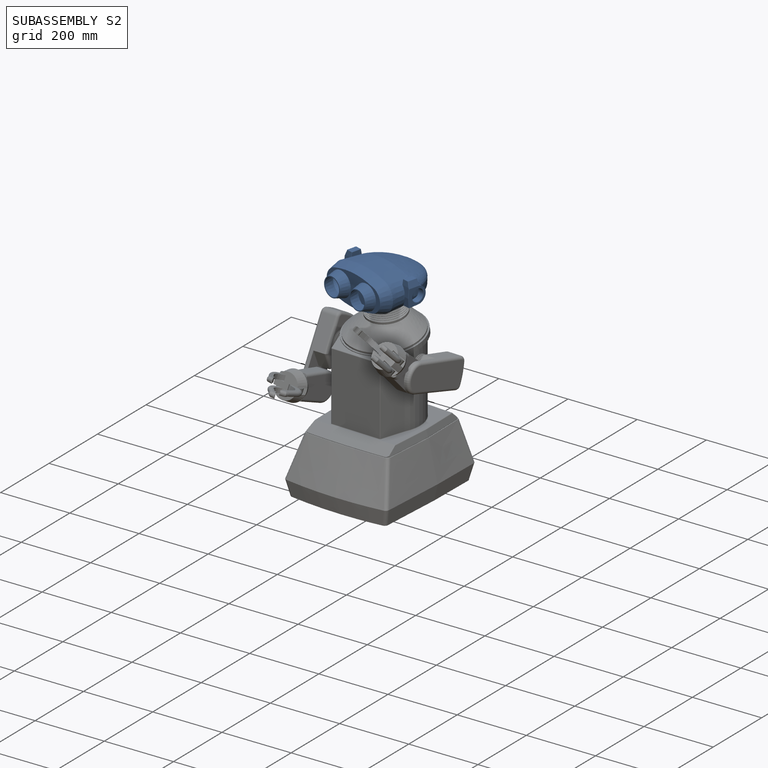
[diagram: subassembly S2 — assembled]
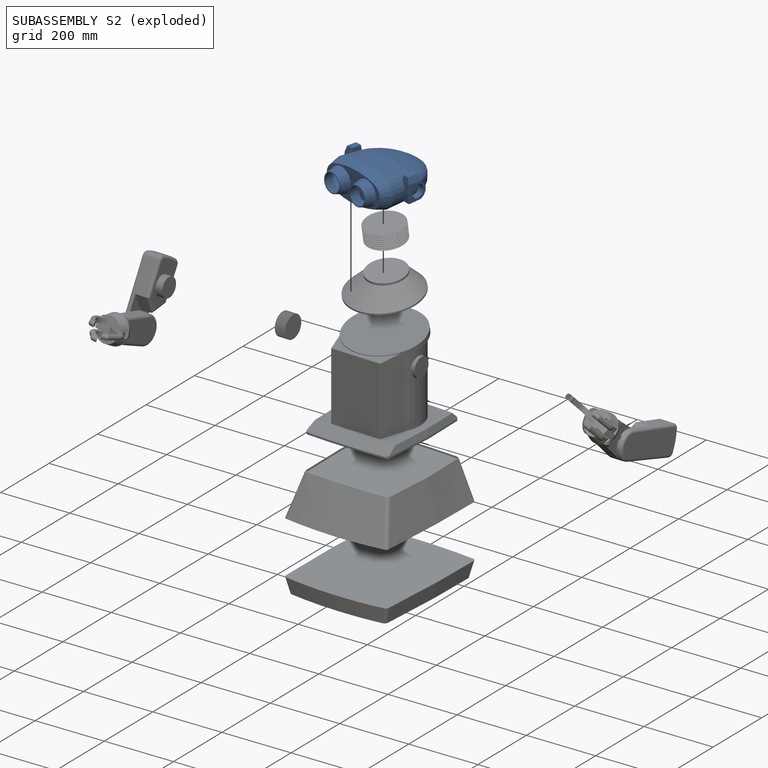
[diagram: subassembly S2 — exploded]
SUBASSEMBLY S2 — 2 components (P7, P15), of which 0 recipe-attached; toured below.
Held by: REVOLUTE mate "Revolute 3" to P8.
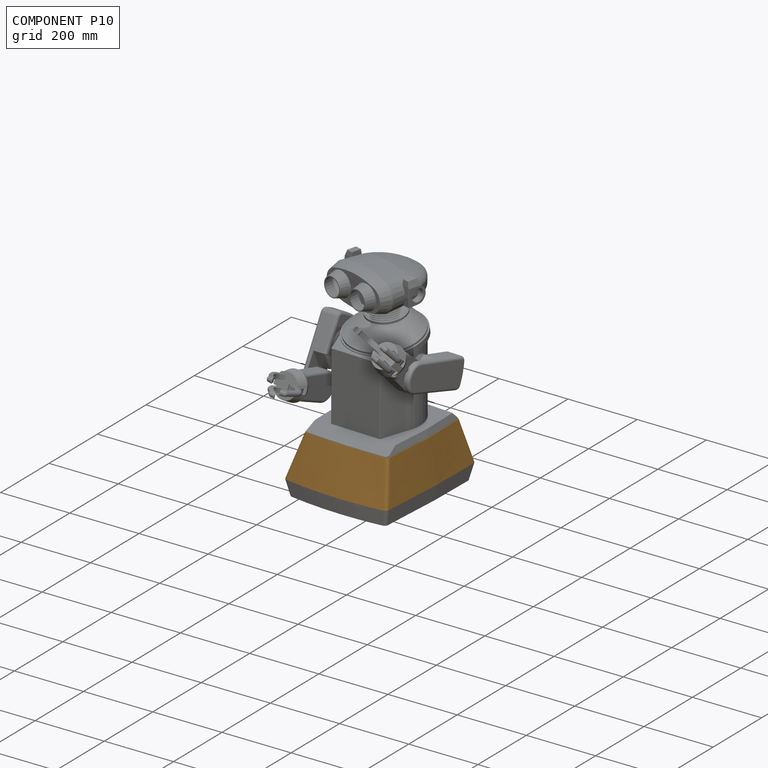
[diagram: component P10 — assembled]
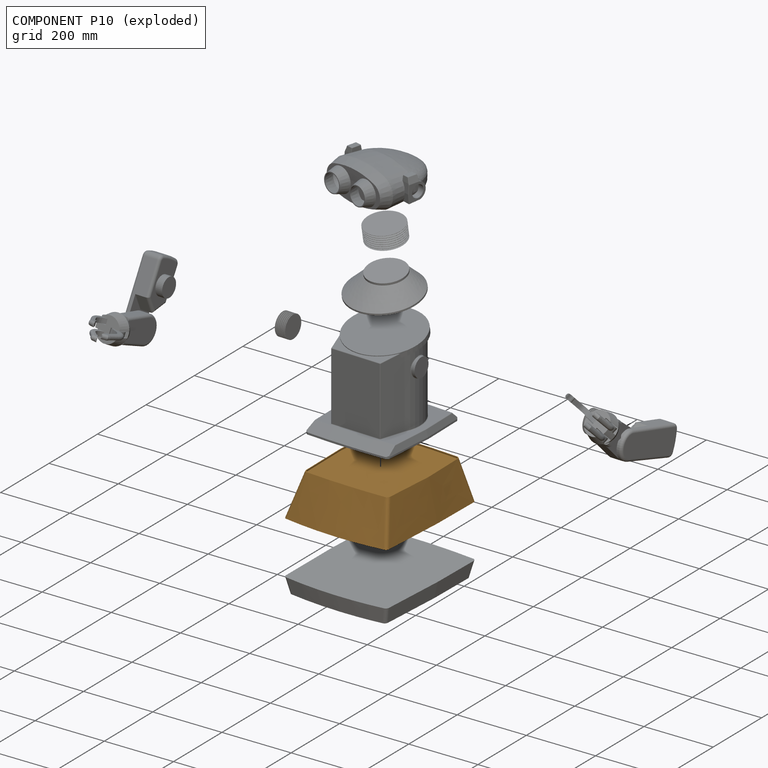
[diagram: component P10 — exploded]
COMPONENT P10 — geometry summary (no construction recipe available for this part):
  bounding box: 367.1 x 318.5 x 150.2 mm
  B-rep topology: 1 solid, 23 faces, 120 edges
  volume: 10219819 mm^3 (58% of its bounding box)
  symmetry: mirror-symmetric across its x mid-plane
Held by: FASTENED mate "Fastened 2" to P13; FASTENED mate "Fastened 1" to P18.
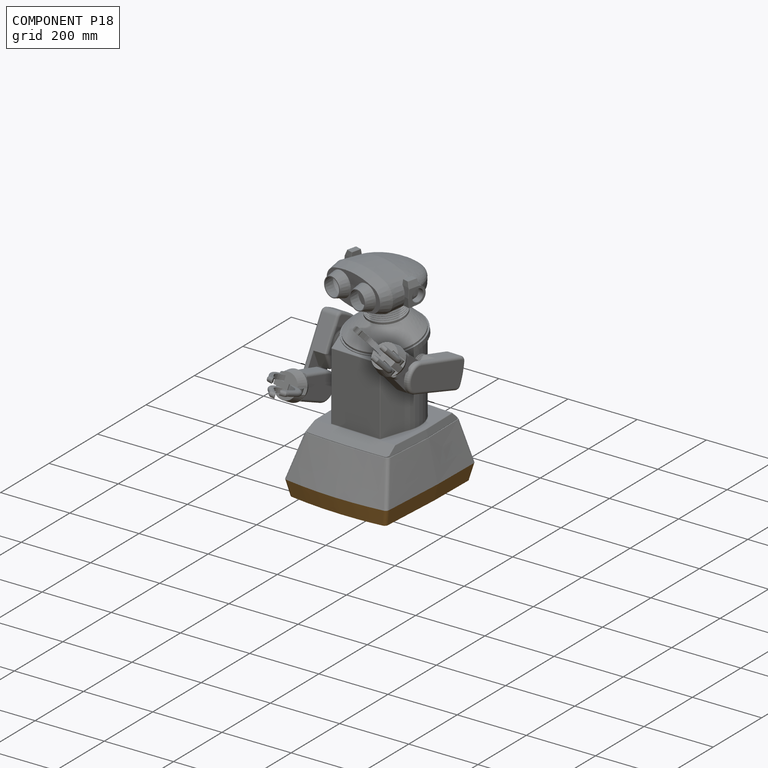
[diagram: component P18 — assembled]
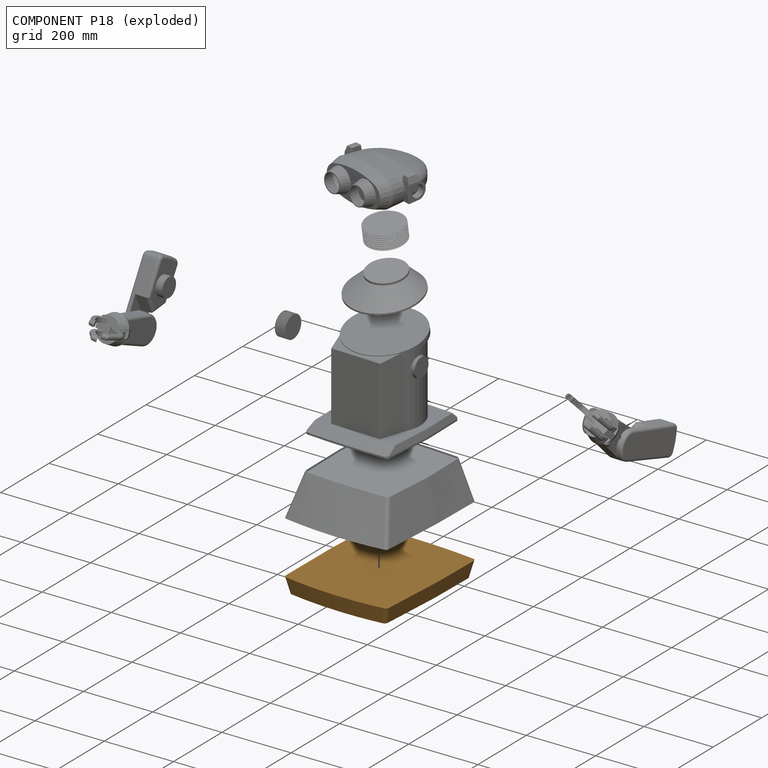
[diagram: component P18 — exploded]
COMPONENT P18 — geometry summary (no construction recipe available for this part):
  bounding box: 367.1 x 315.0 x 60.2 mm
  B-rep topology: 1 solid, 12 faces, 60 edges
  volume: 4751310 mm^3 (68% of its bounding box)
  symmetry: mirror-symmetric across its x mid-plane
Held by: FASTENED mate "Fastened 1" to P10.
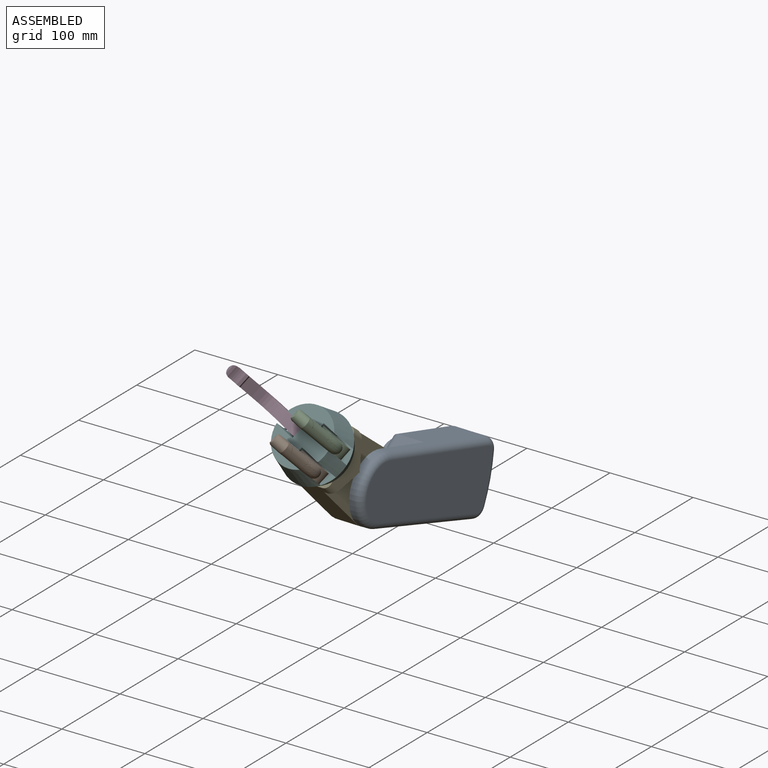
[diagram: subassembly S0 — assembled view]
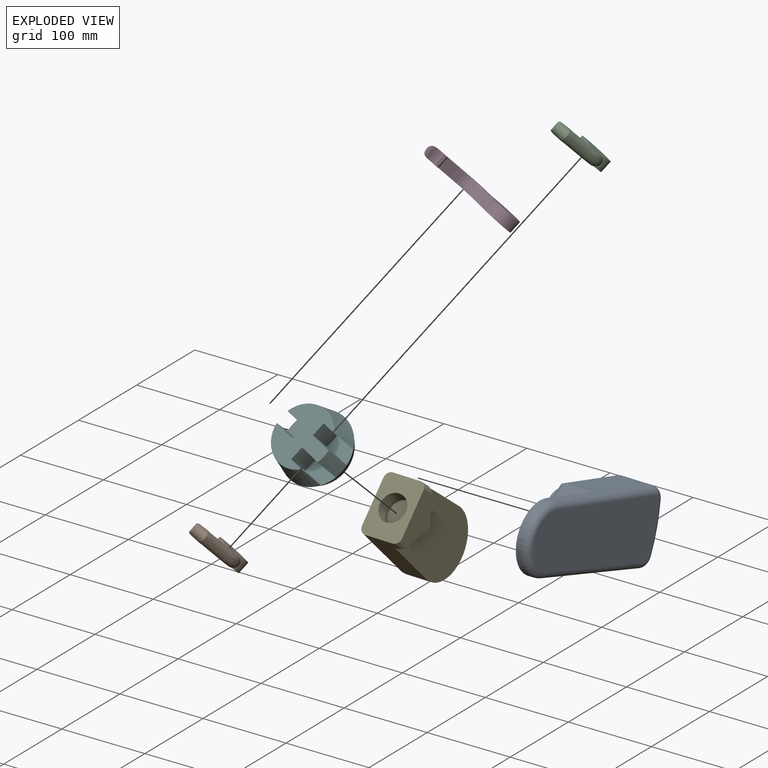
[diagram: subassembly S0 — exploded view]
SUBASSEMBLY S0 TOUR — 6 components, shown here in isolation at its own camera.

INTERNAL MATES
  1. REVOLUTE "Revolute 3": P11 <-> P12, axis (-0.024, -0.744, 0.668) through (199.26, -293.27, 302.38) mm
  2. REVOLUTE "Revolute 1": P9 <-> P12, axis (0.392, 0.607, 0.691) through (187.11, -301.81, 328.37) mm
  3. REVOLUTE "Revolute 2": P1 <-> P12, axis (-0.392, -0.607, -0.691) through (203.97, -330.16, 297.39) mm
  4. REVOLUTE "Revolute 3": P6 <-> P12, axis (-0.392, -0.607, -0.691) through (216.53, -310.73, 319.50) mm
  5. REVOLUTE "Revolute 1": P11 <-> P0, axis (0.999, -0.032, 0.000) through (214.17, -227.09, 242.63) mm
  6. REVOLUTE "Revolute 3": P6 <-> P12, axis (-0.392, -0.607, -0.691) through (216.53, -310.73, 319.50) mm
  7. REVOLUTE "Revolute 2": P1 <-> P12, axis (-0.392, -0.607, -0.691) through (203.97, -330.16, 297.39) mm
  8. REVOLUTE "Revolute 3": P11 <-> P12, axis (-0.024, -0.744, 0.668) through (199.26, -293.27, 302.38) mm
  9. REVOLUTE "Revolute 1": P9 <-> P12, axis (0.392, 0.607, 0.691) through (187.11, -301.81, 328.37) mm
  10. REVOLUTE "Revolute 1": P11 <-> P0, axis (0.999, -0.032, 0.000) through (214.17, -227.09, 242.63) mm

ASSEMBLY ORDER (within the subassembly)
  1. P12 — the base component [order heuristic]
  2. P1 — core [order heuristic]
  3. P6 — core [order heuristic]
  4. P9 — core [order heuristic]
  5. P11 [order verified]
  6. P0 [order verified]
(P0 verified with a relaxed clearance tolerance: the source model stores slight part interference there.)
Order-tag legend:
  [order verified] — this step's position reverses a verified removal order: the component was checked to insert without passing through the ones already placed.
  [order heuristic] — the first 4 components form the assembly's core: parts whose collision-free extraction could not be verified, listed in mate-graph order.
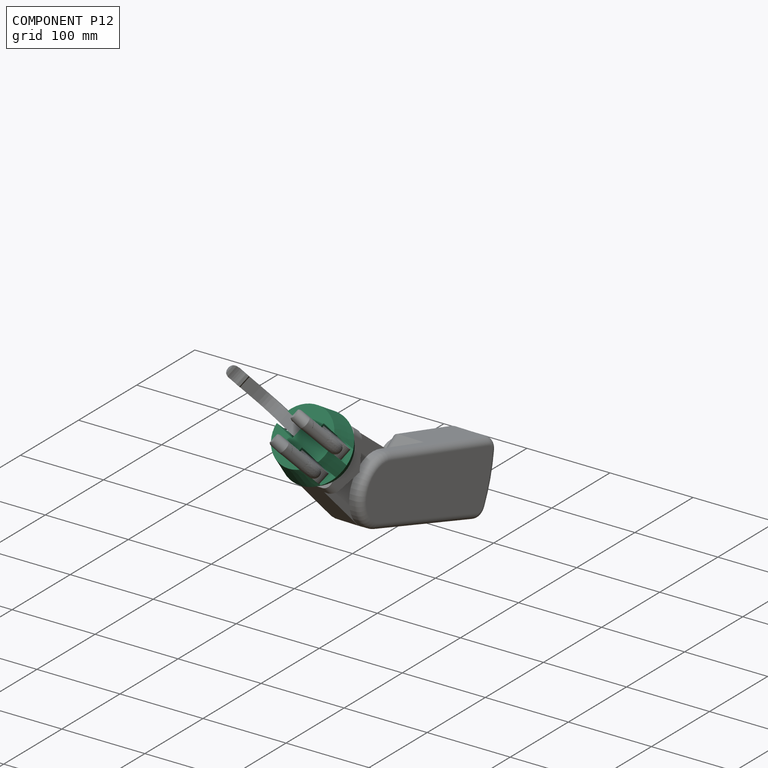
[diagram: component P12 — assembled]
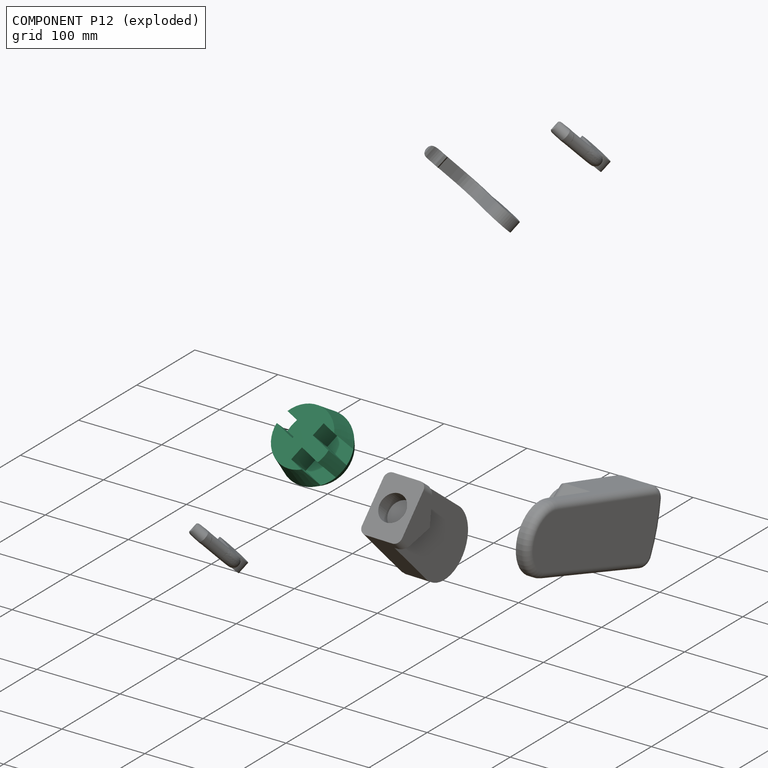
[diagram: component P12 — exploded]
COMPONENT P12 — recipe-attached (CADFS 00590286, mesh-verified: the recipe's output STEP matches this component's geometry to below the mesh-comparison resolution (tessellation chordal tolerance ~0.186 mm)).
Held by: REVOLUTE mate "Revolute 3" to P11; REVOLUTE mate "Revolute 1" to P9; REVOLUTE mate "Revolute 2" to P1; REVOLUTE mate "Revolute 3" to P6; REVOLUTE mate "Revolute 3" to P6; REVOLUTE mate "Revolute 2" to P1; REVOLUTE mate "Revolute 3" to P11; REVOLUTE mate "Revolute 1" to P9.
Construction recipe (FeatureScript — the CAD program that rebuilds this solid; sketch coordinates are in the units given by the * unit suffixes, e.g. mm):

FeatureScript 1511;
import(path : "onshape/std/geometry.fs", version : "1511.0");
import(path : "onshape/std/common.fs", version : "1511.0");
const mm = millimeter;
const VERTEX = EntityType.VERTEX;
const EDGE = EntityType.EDGE;
const FACE = EntityType.FACE;
const BODY = EntityType.BODY;
function v(x, y){return vector(x, y);}
function OD(order){return orderDisambiguation(order);}
function OSD(set){return originalSetDisambiguation(set);}
function TD(topology){return topologyDisambiguation(topology);}
function TDD(query){return trueDependencyDisambiguation(query);}
function sQuery(a, b, c) {return sketchEntityQuery(a, b, c);}

annotation { "Feature Type Name" : "Feature", "Feature Type Description" : "" }
export const myFeature = defineFeature(function(context is Context, id is Id, definition is map)
    precondition{}
    {
        {
            var Q0;
            Q0=qCreatedBy(makeId("Top.planeOp"),FACE);
            var sketch = newSketch(context, id + "F0", { "sketchPlane" : qUnion([Q0])});
            skCircle(sketch, "E0", {"center": v(0, 0) * mm, "radius": 35.5 * mm});
            skSolve(sketch);
        }
        {
            var Q0;
            Q0=qCreatedBy(makeId("Top.planeOp"),FACE);
            cPlane(context, id + "F1", {"entities" : qUnion([Q0]), "cplaneType" : CPlaneType.OFFSET, "offset" : 12 * mm, "width" : 150 * mm, "height" : 150 * mm});
        }
        {
            var Q0;
            Q0=qCreatedBy(id+"F1.planeOp",FACE);
            cPlane(context, id + "F2", {"entities" : qUnion([Q0]), "cplaneType" : CPlaneType.OFFSET, "offset" : 32 * mm, "width" : 150 * mm, "height" : 150 * mm});
        }
        {
            var Q0;
            Q0=qCreatedBy(id+"F1.planeOp",FACE);
            var sketch = newSketch(context, id + "F3", { "sketchPlane" : qUnion([Q0])});
            skCircle(sketch, "E1", {"center": v(0, 0) * mm, "radius": 41 * mm});
            skSolve(sketch);
        }
        {
            var Q0;
            Q0=qCreatedBy(id+"F2.planeOp",FACE);
            var sketch = newSketch(context, id + "F4", { "sketchPlane" : qUnion([Q0])});
            skCircle(sketch, "E2", {"center": v(0, 0) * mm, "radius": 35 * mm});
            skSolve(sketch);
        }
        {
            var Q0;
            Q0=makeQuery(id+"F0.imprint","IMPRINT",FACE,{"disambiguationData":[TD([[makeQuery(id+"F0.imprint","IMPRINT",EDGE,{"derivedFrom":sQuery(id+"F0.wireOp",EDGE,"E0")}),1.0]])]});
            var Q1;
            Q1=makeQuery(id+"F3.imprint","IMPRINT",FACE,{"disambiguationData":[TD([[makeQuery(id+"F3.imprint","IMPRINT",EDGE,{"derivedFrom":sQuery(id+"F3.wireOp",EDGE,"E1")}),1.0]])]});
            loft(context, id + "F5", {"sheetProfilesArray" : [{ "sheetProfileEntities" : qUnion([Q0]) }, { "sheetProfileEntities" : qUnion([Q1]) }]});
        }
        {
            var Q1;
            Q1=makeQuery(id+"F3.imprint","IMPRINT",FACE,{"disambiguationData":[TD([[makeQuery(id+"F3.imprint","IMPRINT",EDGE,{"derivedFrom":sQuery(id+"F3.wireOp",EDGE,"E1")}),1.0]])]});
            var Q2;
            Q2=makeQuery(id+"F4.imprint","IMPRINT",FACE,{"disambiguationData":[TD([[makeQuery(id+"F4.imprint","IMPRINT",EDGE,{"derivedFrom":sQuery(id+"F4.wireOp",EDGE,"E2")}),1.0]])]});
            loft(context, id + "F6", {"operationType" : NewBodyOperationType.ADD, "sheetProfilesArray" : [{ "sheetProfileEntities" : qUnion([Q1]) }, { "sheetProfileEntities" : qUnion([Q2]) }]});
        }
        {
            var Q0;
            Q0=makeQuery(id+"F6.opLoft","CAP_FACE",FACE,{"disambiguationData":[OSD([makeQuery(id+"F4.imprint","IMPRINT",FACE,{"disambiguationData":[TD([[makeQuery(id+"F4.imprint","IMPRINT",EDGE,{"derivedFrom":sQuery(id+"F4.wireOp",EDGE,"E2")}),1.0]])]})])],"isStart":true});
            var sketch = newSketch(context, id + "F7", { "sketchPlane" : qUnion([Q0])});
            skLineSegment(sketch, "E3.bottom", {"start": v(-8, -48) * mm, "end": v(8, -48) * mm});
            skLineSegment(sketch, "E3.top", {"start": v(-8, -8) * mm, "end": v(8, -8) * mm});
            skLineSegment(sketch, "E3.left", {"start": v(-8, -48) * mm, "end": v(-8, -8) * mm});
            skLineSegment(sketch, "E3.right", {"start": v(8, -48) * mm, "end": v(8, -8) * mm});
            skLineSegment(sketch, "E4.bottom", {"start": v(-24, 48) * mm, "end": v(-8, 48) * mm});
            skLineSegment(sketch, "E4.top", {"start": v(-24, 8) * mm, "end": v(-8, 8) * mm});
            skLineSegment(sketch, "E4.left", {"start": v(-24, 48) * mm, "end": v(-24, 8) * mm});
            skLineSegment(sketch, "E4.right", {"start": v(-8, 48) * mm, "end": v(-8, 8) * mm});
            skLineSegment(sketch, "E5.bottom", {"start": v(8, 48) * mm, "end": v(24, 48) * mm});
            skLineSegment(sketch, "E5.top", {"start": v(8, 8) * mm, "end": v(24, 8) * mm});
            skLineSegment(sketch, "E5.left", {"start": v(8, 48) * mm, "end": v(8, 8) * mm});
            skLineSegment(sketch, "E5.right", {"start": v(24, 48) * mm, "end": v(24, 8) * mm});
            skPoint(sketch, "E6", {"position": v(0, -8) * mm});
            skSolve(sketch);
        }
        {
            var Q0;
            {var subQ6=sQuery(id+"F7.wireOp",EDGE,"E3.bottom");var subQ12=sQuery(id+"F7.wireOp",EDGE,"E4.bottom");var subQ18=sQuery(id+"F7.wireOp",EDGE,"E5.bottom");var subQ19=sQuery(id+"F7.wireOp",EDGE,"E3.top");var subQ20=sQuery(id+"F7.wireOp",EDGE,"E4.top");var subQ21=sQuery(id+"F7.wireOp",EDGE,"E5.top");Q0=qUnion([makeQuery(id+"F7.imprint","IMPRINT",FACE,{"disambiguationData":[TD([[makeQuery(id+"F7.imprint","IMPRINT",EDGE,{"derivedFrom":subQ6}),1.0]])]}),makeQuery(id+"F7.imprint","IMPRINT",FACE,{"disambiguationData":[TD([[makeQuery(id+"F7.imprint","IMPRINT",EDGE,{"derivedFrom":subQ12}),-1.0]])]}),makeQuery(id+"F7.imprint","IMPRINT",FACE,{"disambiguationData":[TD([[makeQuery(id+"F7.imprint","IMPRINT",EDGE,{"derivedFrom":subQ18}),-1.0]])]}),makeQuery(id+"F7.imprint","IMPRINT",FACE,{"disambiguationData":[TD([[makeQuery(id+"F7.imprint","IMPRINT",EDGE,{"derivedFrom":subQ19}),-1.0]])]}),makeQuery(id+"F7.imprint","IMPRINT",FACE,{"disambiguationData":[TD([[makeQuery(id+"F7.imprint","IMPRINT",EDGE,{"derivedFrom":subQ20}),1.0]])]}),makeQuery(id+"F7.imprint","IMPRINT",FACE,{"disambiguationData":[TD([[makeQuery(id+"F7.imprint","IMPRINT",EDGE,{"derivedFrom":subQ21}),1.0]])]})]);}
            extrude(context, id + "F8", {"entities" : qUnion([Q0]), "operationType" : NewBodyOperationType.REMOVE, "oppositeDirection" : true, "depth" : 32 * mm});
        }
        {
            var Q0;
            Q0=qCreatedBy(makeId("Right.planeOp"),FACE);
            var sketch = newSketch(context, id + "F9", { "sketchPlane" : qUnion([Q0])});
            skCircle(sketch, "E7", {"center": v(-16, 24) * mm, "radius": 5 * mm});
            skCircle(sketch, "E8", {"center": v(16, 24) * mm, "radius": 5 * mm});
            skSolve(sketch);
        }
        {
            var Q0;
            {Q0=qUnion([makeQuery(id+"F9.imprint","IMPRINT",FACE,{"disambiguationData":[TD([[makeQuery(id+"F9.imprint","IMPRINT",EDGE,{"derivedFrom":sQuery(id+"F9.wireOp",EDGE,"E7")}),1.0]])]}),makeQuery(id+"F9.imprint","IMPRINT",FACE,{"disambiguationData":[TD([[makeQuery(id+"F9.imprint","IMPRINT",EDGE,{"derivedFrom":sQuery(id+"F9.wireOp",EDGE,"E8")}),1.0]])]})]);}
            extrude(context, id + "F10", {"entities" : qUnion([Q0]), "operationType" : NewBodyOperationType.REMOVE, "oppositeDirection" : true, "depth" : 25 * mm});
        }
        {
            var Q0;
            {Q0=qUnion([makeQuery(id+"F9.imprint","IMPRINT",FACE,{"disambiguationData":[TD([[makeQuery(id+"F9.imprint","IMPRINT",EDGE,{"derivedFrom":sQuery(id+"F9.wireOp",EDGE,"E7")}),1.0]])]}),makeQuery(id+"F9.imprint","IMPRINT",FACE,{"disambiguationData":[TD([[makeQuery(id+"F9.imprint","IMPRINT",EDGE,{"derivedFrom":sQuery(id+"F9.wireOp",EDGE,"E8")}),1.0]])]})]);}
            extrude(context, id + "F11", {"entities" : qUnion([Q0]), "operationType" : NewBodyOperationType.REMOVE, "depth" : 25 * mm});
        }
    });
